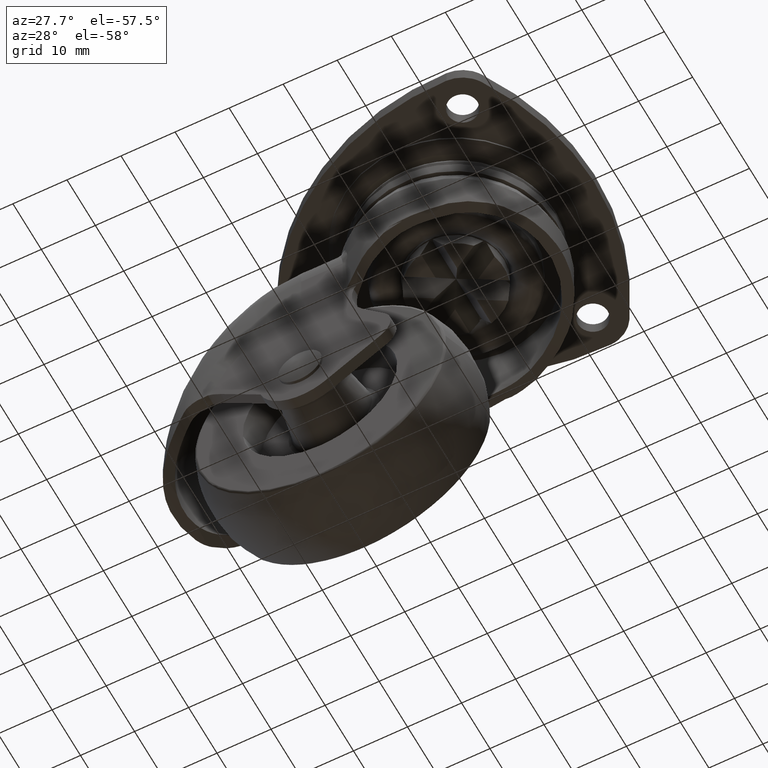
[diagram: clean part render]
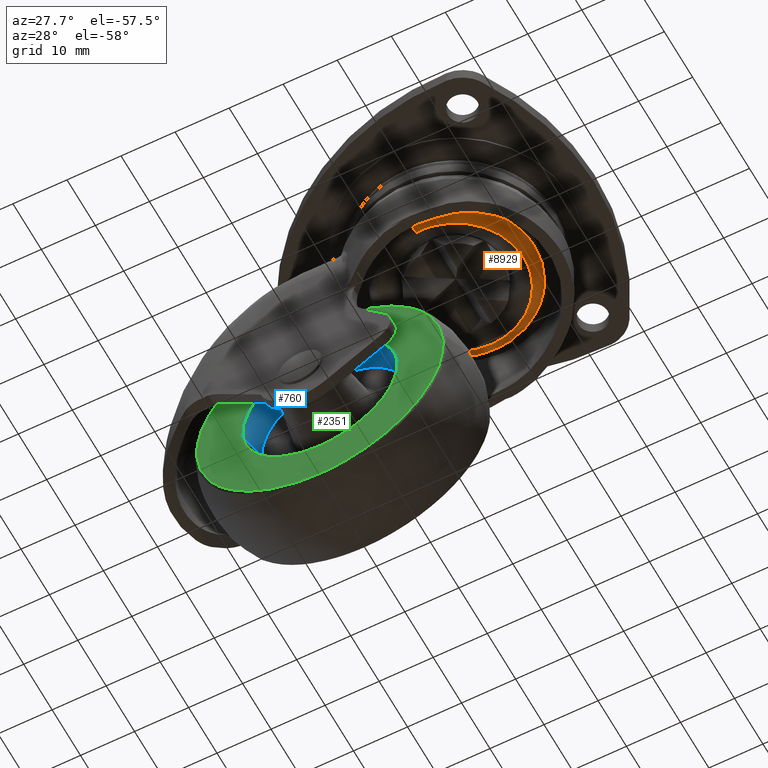
[diagram: same view with three faces highlighted in distinct colors, each labeled with its STEP entity id]
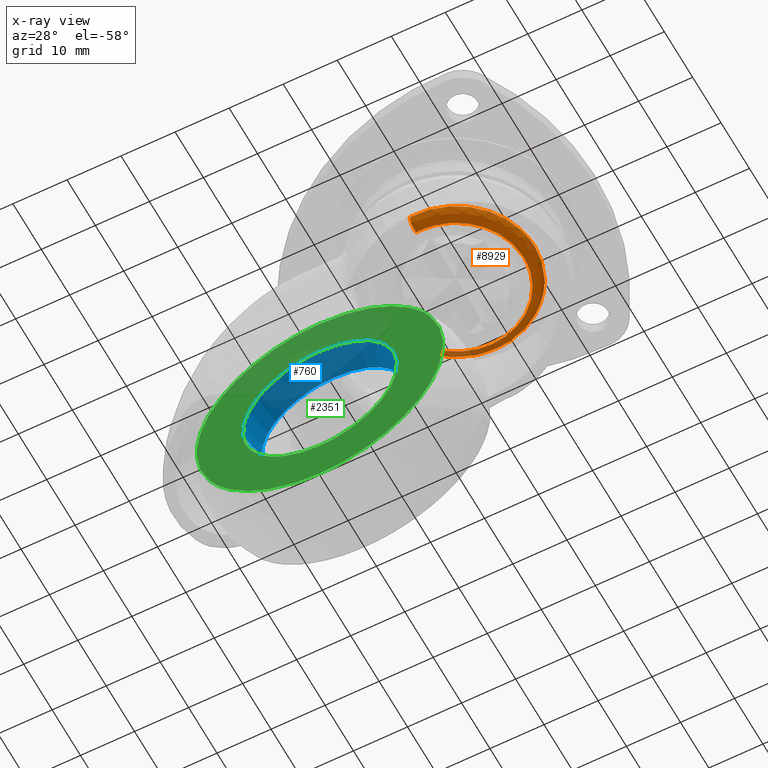
[diagram: x-ray of the same camera — body ghosted, the three highlighted faces saturated]
A machine part, auxiliary view with three faces highlighted in distinct colors.
The next image is the same camera in x-ray (body ghosted, the three faces saturated) — at least one of them is partly hidden behind the body in this view.
Their STEP definitions:

[orange] entity #8929 — the highlighted face is a freeform B-spline surface patch.
#6755=CARTESIAN_POINT('',(14.500000000000000,0.0,-13.260379159228281));
#6756=VERTEX_POINT('',#6755);
#6757=CARTESIAN_POINT('',(10.037689698602760,10.463975607509949,-13.260379159228350));
#6758=VERTEX_POINT('',#6757);
#6759=CARTESIAN_POINT('',(14.500000000000000,0.0,-13.260379159228281));
#6760=CARTESIAN_POINT('',(14.500000000000002,6.183453324695830,-13.260379159228281));
#6761=CARTESIAN_POINT('',(10.037689698602762,10.463975607509948,-13.260379159228345));
#6769=(BOUNDED_CURVE()B_SPLINE_CURVE(2,(#6759,#6760,#6761),.UNSPECIFIED.,.F.,.U.)B_SPLINE_CURVE_WITH_KNOTS((3,3),(0.0,0.128137053052211),.UNSPECIFIED.)CURVE()GEOMETRIC_REPRESENTATION_ITEM()RATIONAL_B_SPLINE_CURVE((1.0,0.849878104329071,0.853645627137217))REPRESENTATION_ITEM(''));
#6770=EDGE_CURVE('',#6756,#6758,#6769,.T.);
#6828=CARTESIAN_POINT('',(1.137656888111247,14.455301339125830,-13.260379159228281));
#6829=VERTEX_POINT('',#6828);
#6835=CARTESIAN_POINT('',(-14.498855140954429,0.182207578380342,-13.260379159405440));
#6836=VERTEX_POINT('',#6835);
#6837=CARTESIAN_POINT('',(1.137656888111248,14.455301339125830,-13.260379159228284));
#6838=CARTESIAN_POINT('',(0.569706551668972,14.499999999999998,-13.260379159228279));
#6839=CARTESIAN_POINT('',(0.0,14.500000000000000,-13.260379159228281));
#6840=CARTESIAN_POINT('',(-14.318922983514346,14.500000000000002,-13.260379159228281));
#6841=CARTESIAN_POINT('',(-14.498855140954426,0.182207578380342,-13.260379159405440));
#6849=(BOUNDED_CURVE()B_SPLINE_CURVE(2,(#6837,#6838,#6839,#6840,#6841),.UNSPECIFIED.,.F.,.U.)B_SPLINE_CURVE_WITH_KNOTS((3,2,3),(0.236331300631403,0.250000000000000,0.497784295919988),.UNSPECIFIED.)CURVE()GEOMETRIC_REPRESENTATION_ITEM()RATIONAL_B_SPLINE_CURVE((0.969723356168970,0.983986122579753,1.0,0.709702639986279,0.994854295640006))REPRESENTATION_ITEM(''));
#6850=EDGE_CURVE('',#6829,#6836,#6849,.T.);
#6867=CARTESIAN_POINT('',(-1.011132147906928,-14.464702270681871,-13.260379159404600));
#6868=VERTEX_POINT('',#6867);
#6882=CARTESIAN_POINT('',(-1.011132147906928,-14.464702270681871,-13.260379159404602));
#6883=CARTESIAN_POINT('',(-0.506182180246572,-14.499999999999998,-13.260379159228279));
#6884=CARTESIAN_POINT('',(0.0,-14.500000000000000,-13.260379159228281));
#6885=CARTESIAN_POINT('',(14.500000000000000,-14.500000000000000,-13.260379159228281));
#6886=CARTESIAN_POINT('',(14.500000000000000,0.0,-13.260379159228281));
#6894=(BOUNDED_CURVE()B_SPLINE_CURVE(2,(#6882,#6883,#6884,#6885,#6886),.UNSPECIFIED.,.F.,.U.)B_SPLINE_CURVE_WITH_KNOTS((3,2,3),(0.737833686533636,0.750000000000000,1.0),.UNSPECIFIED.)CURVE()GEOMETRIC_REPRESENTATION_ITEM()RATIONAL_B_SPLINE_CURVE((0.972879876383897,0.985746277150973,1.0,0.707106781186548,1.0))REPRESENTATION_ITEM(''));
#6895=EDGE_CURVE('',#6868,#6756,#6894,.T.);
#6914=CARTESIAN_POINT('',(10.037689698602763,10.463975607509948,-13.260379159228343));
#6915=CARTESIAN_POINT('',(6.300432849565782,14.048982058964924,-13.260379159228277));
#6916=CARTESIAN_POINT('',(1.137656888111248,14.455301339125830,-13.260379159228284));
#6924=(BOUNDED_CURVE()B_SPLINE_CURVE(2,(#6914,#6915,#6916),.UNSPECIFIED.,.F.,.U.)B_SPLINE_CURVE_WITH_KNOTS((3,3),(0.128137053052211,0.236331300631403),.UNSPECIFIED.)CURVE()GEOMETRIC_REPRESENTATION_ITEM()RATIONAL_B_SPLINE_CURVE((0.853645627137217,0.856826785793165,0.969723356168970))REPRESENTATION_ITEM(''));
#6925=EDGE_CURVE('',#6758,#6829,#6924,.T.);
#8826=CARTESIAN_POINT('',(-0.861966850926120,-12.330835078500918,-15.255537874431052));
#8827=CARTESIAN_POINT('',(-0.509063989208924,-12.355504175643215,-15.255537874431049));
#8828=CARTESIAN_POINT('',(-0.155327883523865,-12.359949588646561,-15.255537874431045));
#8829=CARTESIAN_POINT('',(12.204621705122690,-12.515277472170421,-15.255537874431051));
#8830=CARTESIAN_POINT('',(12.359949588646561,-0.155327883523866,-15.255537874431045));
#8831=CARTESIAN_POINT('',(12.515277472170425,12.204621705122690,-15.255537874431051));
#8832=CARTESIAN_POINT('',(0.155327883523867,12.359949588646561,-15.255537874431045));
#8833=CARTESIAN_POINT('',(-12.204621705122687,12.515277472170425,-15.255537874431051));
#8834=CARTESIAN_POINT('',(-12.359949588646561,0.155327883523868,-15.255537874431045));
#8835=CARTESIAN_POINT('',(-1.021945208072127,-14.619399581854438,-15.415453736631761));
#8836=CARTESIAN_POINT('',(-0.603544676706751,-14.648647186428729,-15.415453736631756));
#8837=CARTESIAN_POINT('',(-0.184156253893811,-14.653917654210394,-15.415453736631761));
#8838=CARTESIAN_POINT('',(14.469761400316578,-14.838073908104207,-15.415453736631761));
#8839=CARTESIAN_POINT('',(14.653917654210394,-0.184156253893812,-15.415453736631761));
#8840=CARTESIAN_POINT('',(14.838073908104208,14.469761400316578,-15.415453736631761));
#8841=CARTESIAN_POINT('',(0.184156253893813,14.653917654210394,-15.415453736631761));
#8842=CARTESIAN_POINT('',(-14.469761400316578,14.838073908104208,-15.415453736631761));
#8843=CARTESIAN_POINT('',(-14.653917654210394,0.184156253893814,-15.415453736631761));
#8844=CARTESIAN_POINT('',(-1.010793750471796,-14.459872815358922,-13.121304548040678));
#8845=CARTESIAN_POINT('',(-0.596958802220489,-14.488801270315651,-13.121304548040669));
#8846=CARTESIAN_POINT('',(-0.182146742384866,-14.494014226796766,-13.121304548040673));
#8847=CARTESIAN_POINT('',(14.311867484411906,-14.676160969181637,-13.121304548040671));
#8848=CARTESIAN_POINT('',(14.494014226796766,-0.182146742384867,-13.121304548040673));
#8849=CARTESIAN_POINT('',(14.676160969181637,14.311867484411906,-13.121304548040671));
#8850=CARTESIAN_POINT('',(0.182146742384868,14.494014226796766,-13.121304548040673));
#8851=CARTESIAN_POINT('',(-14.311867484411904,14.676160969181641,-13.121304548040671));
#8852=CARTESIAN_POINT('',(-14.494014226796766,0.182146742384869,-13.121304548040673));
#8860=(BOUNDED_SURFACE()B_SPLINE_SURFACE(2,2,((#8826,#8835,#8844),(#8827,#8836,#8845),(#8828,#8837,#8846),(#8829,#8838,#8847),(#8830,#8839,#8848),(#8831,#8840,#8849),(#8832,#8841,#8850),(#8833,#8842,#8851),(#8834,#8843,#8852)),.UNSPECIFIED.,.F.,.F.,.U.)B_SPLINE_SURFACE_WITH_KNOTS((3,2,2,2,3),(3,3),(0.0,0.960653695652952,24.977018990767512,48.993384285882073,73.009749580996640),(0.0,3.644748572973803),.UNSPECIFIED.)GEOMETRIC_REPRESENTATION_ITEM()RATIONAL_B_SPLINE_SURFACE(((0.895729783543511,0.587800159032262,0.895729817610168),(0.905606541704531,0.594281533353437,0.905606576146824),(0.916342147511007,0.601326504857443,0.916342182361599),(0.647951746392076,0.425202049291904,0.647951771035167),(0.916342147511007,0.601326504857443,0.916342182361599),(0.647951746392076,0.425202049291904,0.647951771035167),(0.916342147511007,0.601326504857443,0.916342182361599),(0.647951746392076,0.425202049291904,0.647951771035167),(0.916342147511007,0.601326504857443,0.916342182361599)))REPRESENTATION_ITEM('')SURFACE());
#8861=CARTESIAN_POINT('',(12.500000000000000,0.0,-15.260379159228300));
#8862=VERTEX_POINT('',#8861);
#8863=CARTESIAN_POINT('',(-0.871665645881486,-12.469570931178540,-15.260379159228290));
#8864=VERTEX_POINT('',#8863);
#8865=CARTESIAN_POINT('',(12.500000000000000,0.0,-15.260379159228300));
#8866=CARTESIAN_POINT('',(12.499999999999998,-12.499999999999998,-15.260379159228293));
#8867=CARTESIAN_POINT('',(0.0,-12.500000000000000,-15.260379159228300));
#8868=CARTESIAN_POINT('',(-0.436363949050278,-12.500000000000004,-15.260379159228302));
#8869=CARTESIAN_POINT('',(-0.871665645881486,-12.469570931178534,-15.260379159228291));
#8877=(BOUNDED_CURVE()B_SPLINE_CURVE(2,(#8865,#8866,#8867,#8868,#8869),.UNSPECIFIED.,.F.,.U.)B_SPLINE_CURVE_WITH_KNOTS((3,2,3),(0.0,0.250000000000000,0.262166313481806),.UNSPECIFIED.)CURVE()GEOMETRIC_REPRESENTATION_ITEM()RATIONAL_B_SPLINE_CURVE((1.0,0.707106781186547,1.0,0.985746277132881,0.972879876351236))REPRESENTATION_ITEM(''));
#8878=EDGE_CURVE('',#8862,#8864,#8877,.T.);
#8879=ORIENTED_EDGE('',*,*,#8878,.F.);
#8880=CARTESIAN_POINT('',(-12.499013055860109,0.157075498774634,-15.260379159228290));
#8881=VERTEX_POINT('',#8880);
#8882=CARTESIAN_POINT('',(-12.499013055860109,0.157075498774634,-15.260379159228293));
#8883=CARTESIAN_POINT('',(-12.343899123463993,12.499999999999998,-15.260379159228293));
#8884=CARTESIAN_POINT('',(0.0,12.500000000000000,-15.260379159228300));
#8885=CARTESIAN_POINT('',(12.499999999999998,12.499999999999998,-15.260379159228293));
#8886=CARTESIAN_POINT('',(12.500000000000000,0.0,-15.260379159228300));
#8894=(BOUNDED_CURVE()B_SPLINE_CURVE(2,(#8882,#8883,#8884,#8885,#8886),.UNSPECIFIED.,.F.,.U.)B_SPLINE_CURVE_WITH_KNOTS((3,2,3),(0.502215704083649,0.750000000000000,1.0),.UNSPECIFIED.)CURVE()GEOMETRIC_REPRESENTATION_ITEM()RATIONAL_B_SPLINE_CURVE((0.994854295631637,0.709702639990540,1.0,0.707106781186547,1.0))REPRESENTATION_ITEM(''));
#8895=EDGE_CURVE('',#8881,#8862,#8894,.T.);
#8896=ORIENTED_EDGE('',*,*,#8895,.F.);
#8897=CARTESIAN_POINT('',(-12.499013055860114,0.157075498774634,-15.260379159228291));
#8898=CARTESIAN_POINT('',(-14.498855140601027,0.182207578304150,-15.260379152598128));
#8899=CARTESIAN_POINT('',(-14.498855140954426,0.182207578380342,-13.260379159405439));
#8907=(BOUNDED_CURVE()B_SPLINE_CURVE(2,(#8897,#8898,#8899),.UNSPECIFIED.,.F.,.U.)B_SPLINE_CURVE_WITH_KNOTS((3,3),(-1.734750788213725,-0.265249208525689),.UNSPECIFIED.)CURVE()GEOMETRIC_REPRESENTATION_ITEM()RATIONAL_B_SPLINE_CURVE((0.889029722355671,0.628638946860309,0.889029723511201))REPRESENTATION_ITEM(''));
#8908=EDGE_CURVE('',#8881,#6836,#8907,.T.);
#8909=ORIENTED_EDGE('',*,*,#8908,.T.);
#8910=ORIENTED_EDGE('',*,*,#6850,.F.);
#8911=ORIENTED_EDGE('',*,*,#6925,.F.);
#8912=ORIENTED_EDGE('',*,*,#6770,.F.);
#8913=ORIENTED_EDGE('',*,*,#6895,.F.);
#8914=CARTESIAN_POINT('',(-0.871665645881486,-12.469570931178541,-15.260379159228293));
#8915=CARTESIAN_POINT('',(-1.011132147819309,-14.464702270334477,-15.260379142756058));
#8916=CARTESIAN_POINT('',(-1.011132147906928,-14.464702270681862,-13.260379159404611));
#8924=(BOUNDED_CURVE()B_SPLINE_CURVE(2,(#8914,#8915,#8916),.UNSPECIFIED.,.F.,.U.)B_SPLINE_CURVE_WITH_KNOTS((3,3),(-1.734750783100303,-0.265249208524815),.UNSPECIFIED.)CURVE()GEOMETRIC_REPRESENTATION_ITEM()RATIONAL_B_SPLINE_CURVE((0.869031708910550,0.614498218047240,0.869031711811790))REPRESENTATION_ITEM(''));
#8925=EDGE_CURVE('',#8864,#6868,#8924,.T.);
#8926=ORIENTED_EDGE('',*,*,#8925,.F.);
#8927=EDGE_LOOP('',(#8879,#8896,#8909,#8910,#8911,#8912,#8913,#8926));
#8928=FACE_OUTER_BOUND('',#8927,.T.);
#8929=ADVANCED_FACE('',(#8928),#8860,.T.);

[blue] entity #760 — the highlighted face is a freeform B-spline surface patch.
#662=CARTESIAN_POINT('',(13.264939225053491,-2.875000000000000,-43.956026642063449));
#663=CARTESIAN_POINT('',(12.220965867116943,-2.875000000000000,-30.691087417009953));
#664=CARTESIAN_POINT('',(-1.043973357936550,-2.875000000000000,-31.735060774946511));
#665=CARTESIAN_POINT('',(-14.308912582990047,-2.875000000000000,-32.779034132883055));
#666=CARTESIAN_POINT('',(-13.264939225053491,-2.875000000000000,-46.043973357936551));
#667=CARTESIAN_POINT('',(14.280692338566981,-8.128125000000001,-43.876085138317521));
#668=CARTESIAN_POINT('',(13.156777476884500,-8.128125000000001,-29.595392799750538));
#669=CARTESIAN_POINT('',(-1.123914861682482,-8.128125000000001,-30.719307661433021));
#670=CARTESIAN_POINT('',(-15.404607200249460,-8.128125000000001,-31.843222523115493));
#671=CARTESIAN_POINT('',(-14.280692338566981,-8.128125000000001,-46.123914861682479));
#679=(BOUNDED_SURFACE()B_SPLINE_SURFACE(2,1,((#662,#667),(#663,#668),(#664,#669),(#665,#670),(#666,#671)),.UNSPECIFIED.,.F.,.F.,.U.)B_SPLINE_SURFACE_WITH_KNOTS((3,2,3),(2,2),(0.0,23.734190374888168,47.468380749776337),(0.0,5.351024882885383),.UNSPECIFIED.)GEOMETRIC_REPRESENTATION_ITEM()RATIONAL_B_SPLINE_SURFACE(((1.0,1.0),(0.707106781186548,0.707106781186548),(1.0,1.0),(0.707106781186548,0.707106781186548),(1.0,1.0)))REPRESENTATION_ITEM('')SURFACE());
#680=CARTESIAN_POINT('',(0.0,-8.0,-30.699999999999999));
#681=VERTEX_POINT('',#680);
#682=CARTESIAN_POINT('',(14.255917872380010,-8.000000000010516,-43.878034931018561));
#683=VERTEX_POINT('',#682);
#684=CARTESIAN_POINT('',(0.0,-8.0,-30.699999999999999));
#685=CARTESIAN_POINT('',(13.218784030576403,-8.0,-30.699999999999996));
#686=CARTESIAN_POINT('',(14.255917872380014,-8.000000000010516,-43.878034931018561));
#694=(BOUNDED_CURVE()B_SPLINE_CURVE(2,(#684,#685,#686),.UNSPECIFIED.,.F.,.U.)B_SPLINE_CURVE_WITH_KNOTS((3,3),(0.0,0.236331300631009),.UNSPECIFIED.)CURVE()GEOMETRIC_REPRESENTATION_ITEM()RATIONAL_B_SPLINE_CURVE((1.0,0.723120658607256,0.969723356168147))REPRESENTATION_ITEM(''));
#695=EDGE_CURVE('',#681,#683,#694,.T.);
#696=ORIENTED_EDGE('',*,*,#695,.F.);
#697=CARTESIAN_POINT('',(-14.255917872380010,-8.000000000010516,-46.121965068981432));
#698=VERTEX_POINT('',#697);
#699=CARTESIAN_POINT('',(-14.255917872380014,-8.000000000010516,-46.121965068981432));
#700=CARTESIAN_POINT('',(-14.300000000000002,-8.0,-45.561848530283108));
#701=CARTESIAN_POINT('',(-14.300000000000001,-8.0,-45.0));
#702=CARTESIAN_POINT('',(-14.299999999999999,-8.0,-30.699999999999999));
#703=CARTESIAN_POINT('',(0.0,-8.0,-30.699999999999999));
#711=(BOUNDED_CURVE()B_SPLINE_CURVE(2,(#699,#700,#701,#702,#703),.UNSPECIFIED.,.F.,.U.)B_SPLINE_CURVE_WITH_KNOTS((3,2,3),(0.736331300631009,0.750000000000000,1.0),.UNSPECIFIED.)CURVE()GEOMETRIC_REPRESENTATION_ITEM()RATIONAL_B_SPLINE_CURVE((0.969723356168147,0.983986122579291,1.0,0.707106781186548,1.0))REPRESENTATION_ITEM(''));
#712=EDGE_CURVE('',#698,#681,#711,.T.);
#713=ORIENTED_EDGE('',*,*,#712,.F.);
#714=CARTESIAN_POINT('',(-13.289109435962480,-3.000000000004256,-46.045875594819172));
#715=VERTEX_POINT('',#714);
#716=CARTESIAN_POINT('',(-13.289109435962480,-3.000000000004256,-46.045875594819172));
#717=CARTESIAN_POINT('',(-14.255917872380010,-8.000000000010516,-46.121965068981432));
#718=QUASI_UNIFORM_CURVE('',1,(#716,#717),.UNSPECIFIED.,.F.,.U.);
#719=EDGE_CURVE('',#715,#698,#718,.T.);
#720=ORIENTED_EDGE('',*,*,#719,.F.);
#721=CARTESIAN_POINT('',(0.0,-3.0,-31.669798000000021));
#722=VERTEX_POINT('',#721);
#723=CARTESIAN_POINT('',(-13.289109435962484,-3.000000000004256,-46.045875594819165));
#724=CARTESIAN_POINT('',(-13.330201999999975,-3.0,-45.523745063043584));
#725=CARTESIAN_POINT('',(-13.330201999999980,-3.0,-45.0));
#726=CARTESIAN_POINT('',(-13.330201999999982,-3.000000000000000,-31.669798000000014));
#727=CARTESIAN_POINT('',(0.0,-3.0,-31.669798000000021));
#735=(BOUNDED_CURVE()B_SPLINE_CURVE(2,(#723,#724,#725,#726,#727),.UNSPECIFIED.,.F.,.U.)B_SPLINE_CURVE_WITH_KNOTS((3,2,3),(0.736331300632003,0.750000000000000,1.0),.UNSPECIFIED.)CURVE()GEOMETRIC_REPRESENTATION_ITEM()RATIONAL_B_SPLINE_CURVE((0.969723356170222,0.983986122580456,1.0,0.707106781186547,1.0))REPRESENTATION_ITEM(''));
#736=EDGE_CURVE('',#715,#722,#735,.T.);
#737=ORIENTED_EDGE('',*,*,#736,.T.);
#738=CARTESIAN_POINT('',(13.289109435962480,-3.000000000004256,-43.954124405180842));
#739=VERTEX_POINT('',#738);
#740=CARTESIAN_POINT('',(0.0,-3.0,-31.669798000000021));
#741=CARTESIAN_POINT('',(12.322311980628147,-3.000000000000000,-31.669798000000011));
#742=CARTESIAN_POINT('',(13.289109435962486,-3.000000000004256,-43.954124405180835));
#750=(BOUNDED_CURVE()B_SPLINE_CURVE(2,(#740,#741,#742),.UNSPECIFIED.,.F.,.U.)B_SPLINE_CURVE_WITH_KNOTS((3,3),(0.0,0.236331300632003),.UNSPECIFIED.)CURVE()GEOMETRIC_REPRESENTATION_ITEM()RATIONAL_B_SPLINE_CURVE((1.0,0.723120658606091,0.969723356170222))REPRESENTATION_ITEM(''));
#751=EDGE_CURVE('',#722,#739,#750,.T.);
#752=ORIENTED_EDGE('',*,*,#751,.T.);
#753=CARTESIAN_POINT('',(13.289109435962480,-3.000000000004256,-43.954124405180842));
#754=CARTESIAN_POINT('',(14.255917872380010,-8.000000000010516,-43.878034931018561));
#755=QUASI_UNIFORM_CURVE('',1,(#753,#754),.UNSPECIFIED.,.F.,.U.);
#756=EDGE_CURVE('',#739,#683,#755,.T.);
#757=ORIENTED_EDGE('',*,*,#756,.T.);
#758=EDGE_LOOP('',(#696,#713,#720,#737,#752,#757));
#759=FACE_OUTER_BOUND('',#758,.T.);
#760=ADVANCED_FACE('',(#759),#679,.F.);

[green] entity #2351 — the highlighted face is a freeform B-spline surface patch.
#680=CARTESIAN_POINT('',(0.0,-8.0,-30.699999999999999));
#681=VERTEX_POINT('',#680);
#682=CARTESIAN_POINT('',(14.255917872380010,-8.000000000010516,-43.878034931018561));
#683=VERTEX_POINT('',#682);
#684=CARTESIAN_POINT('',(0.0,-8.0,-30.699999999999999));
#685=CARTESIAN_POINT('',(13.218784030576403,-8.0,-30.699999999999996));
#686=CARTESIAN_POINT('',(14.255917872380014,-8.000000000010516,-43.878034931018561));
#694=(BOUNDED_CURVE()B_SPLINE_CURVE(2,(#684,#685,#686),.UNSPECIFIED.,.F.,.U.)B_SPLINE_CURVE_WITH_KNOTS((3,3),(0.0,0.236331300631009),.UNSPECIFIED.)CURVE()GEOMETRIC_REPRESENTATION_ITEM()RATIONAL_B_SPLINE_CURVE((1.0,0.723120658607256,0.969723356168147))REPRESENTATION_ITEM(''));
#695=EDGE_CURVE('',#681,#683,#694,.T.);
#697=CARTESIAN_POINT('',(-14.255917872380010,-8.000000000010516,-46.121965068981432));
#698=VERTEX_POINT('',#697);
#699=CARTESIAN_POINT('',(-14.255917872380014,-8.000000000010516,-46.121965068981432));
#700=CARTESIAN_POINT('',(-14.300000000000002,-8.0,-45.561848530283108));
#701=CARTESIAN_POINT('',(-14.300000000000001,-8.0,-45.0));
#702=CARTESIAN_POINT('',(-14.299999999999999,-8.0,-30.699999999999999));
#703=CARTESIAN_POINT('',(0.0,-8.0,-30.699999999999999));
#711=(BOUNDED_CURVE()B_SPLINE_CURVE(2,(#699,#700,#701,#702,#703),.UNSPECIFIED.,.F.,.U.)B_SPLINE_CURVE_WITH_KNOTS((3,2,3),(0.736331300631009,0.750000000000000,1.0),.UNSPECIFIED.)CURVE()GEOMETRIC_REPRESENTATION_ITEM()RATIONAL_B_SPLINE_CURVE((0.969723356168147,0.983986122579291,1.0,0.707106781186548,1.0))REPRESENTATION_ITEM(''));
#712=EDGE_CURVE('',#698,#681,#711,.T.);
#779=CARTESIAN_POINT('',(0.0,-8.0,-59.299999999999997));
#780=VERTEX_POINT('',#779);
#781=CARTESIAN_POINT('',(14.255917872380014,-8.000000000010516,-43.878034931018561));
#782=CARTESIAN_POINT('',(14.300000000000002,-8.0,-44.438151469716892));
#783=CARTESIAN_POINT('',(14.300000000000001,-8.0,-45.0));
#784=CARTESIAN_POINT('',(14.299999999999999,-8.0,-59.299999999999997));
#785=CARTESIAN_POINT('',(0.0,-8.0,-59.299999999999997));
#793=(BOUNDED_CURVE()B_SPLINE_CURVE(2,(#781,#782,#783,#784,#785),.UNSPECIFIED.,.F.,.U.)B_SPLINE_CURVE_WITH_KNOTS((3,2,3),(0.236331300631009,0.250000000000000,0.500000000000000),.UNSPECIFIED.)CURVE()GEOMETRIC_REPRESENTATION_ITEM()RATIONAL_B_SPLINE_CURVE((0.969723356168147,0.983986122579291,1.0,0.707106781186548,1.0))REPRESENTATION_ITEM(''));
#794=EDGE_CURVE('',#683,#780,#793,.T.);
#828=CARTESIAN_POINT('',(0.0,-8.0,-59.299999999999997));
#829=CARTESIAN_POINT('',(-13.218784030576444,-8.0,-59.299999999999990));
#830=CARTESIAN_POINT('',(-14.255917872380008,-8.000000000010518,-46.121965068981432));
#838=(BOUNDED_CURVE()B_SPLINE_CURVE(2,(#828,#829,#830),.UNSPECIFIED.,.F.,.U.)B_SPLINE_CURVE_WITH_KNOTS((3,3),(0.500000000000000,0.736331300631010),.UNSPECIFIED.)CURVE()GEOMETRIC_REPRESENTATION_ITEM()RATIONAL_B_SPLINE_CURVE((1.0,0.723120658607256,0.969723356168148))REPRESENTATION_ITEM(''));
#839=EDGE_CURVE('',#780,#698,#838,.T.);
#1829=CARTESIAN_POINT('',(-20.389763558698348,-7.999999999999998,-55.228243526113417));
#1830=VERTEX_POINT('',#1829);
#1844=CARTESIAN_POINT('',(0.0,-8.0,-22.188611999999999));
#1845=VERTEX_POINT('',#1844);
#1846=CARTESIAN_POINT('',(-20.389763558698348,-7.999999999999998,-55.228243526113410));
#1847=CARTESIAN_POINT('',(-22.811387999999997,-8.0,-50.400791948495225));
#1848=CARTESIAN_POINT('',(-22.811388000000001,-8.0,-45.0));
#1849=CARTESIAN_POINT('',(-22.811388000000004,-8.0,-22.188611999999996));
#1850=CARTESIAN_POINT('',(0.0,-8.0,-22.188611999999999));
#1858=(BOUNDED_CURVE()B_SPLINE_CURVE(2,(#1846,#1847,#1848,#1849,#1850),.UNSPECIFIED.,.F.,.U.)B_SPLINE_CURVE_WITH_KNOTS((3,2,3),(0.673769062113253,0.750000000000000,1.0),.UNSPECIFIED.)CURVE()GEOMETRIC_REPRESENTATION_ITEM()RATIONAL_B_SPLINE_CURVE((0.875845342760467,0.910689900916730,1.0,0.707106781186548,1.0))REPRESENTATION_ITEM(''));
#1859=EDGE_CURVE('',#1830,#1845,#1858,.T.);
#1861=CARTESIAN_POINT('',(20.389763558698348,-7.999999999999999,-34.771756473886583));
#1862=VERTEX_POINT('',#1861);
#1863=CARTESIAN_POINT('',(0.0,-8.0,-22.188611999999999));
#1864=CARTESIAN_POINT('',(14.077602743467777,-8.0,-22.188612000000003));
#1865=CARTESIAN_POINT('',(20.389763558698348,-7.999999999999999,-34.771756473886590));
#1873=(BOUNDED_CURVE()B_SPLINE_CURVE(2,(#1863,#1864,#1865),.UNSPECIFIED.,.F.,.U.)B_SPLINE_CURVE_WITH_KNOTS((3,3),(0.0,0.173769062113253),.UNSPECIFIED.)CURVE()GEOMETRIC_REPRESENTATION_ITEM()RATIONAL_B_SPLINE_CURVE((1.0,0.796416880269818,0.875845342760467))REPRESENTATION_ITEM(''));
#1874=EDGE_CURVE('',#1845,#1862,#1873,.T.);
#1976=CARTESIAN_POINT('',(0.0,-8.0,-67.811387999999994));
#1977=VERTEX_POINT('',#1976);
#1978=CARTESIAN_POINT('',(20.389763558698348,-7.999999999999999,-34.771756473886590));
#1979=CARTESIAN_POINT('',(22.811387999999997,-8.0,-39.599208051504775));
#1980=CARTESIAN_POINT('',(22.811388000000001,-8.0,-45.0));
#1981=CARTESIAN_POINT('',(22.811388000000004,-8.0,-67.811387999999994));
#1982=CARTESIAN_POINT('',(0.0,-8.0,-67.811387999999994));
#1990=(BOUNDED_CURVE()B_SPLINE_CURVE(2,(#1978,#1979,#1980,#1981,#1982),.UNSPECIFIED.,.F.,.U.)B_SPLINE_CURVE_WITH_KNOTS((3,2,3),(0.173769062113253,0.250000000000000,0.500000000000000),.UNSPECIFIED.)CURVE()GEOMETRIC_REPRESENTATION_ITEM()RATIONAL_B_SPLINE_CURVE((0.875845342760467,0.910689900916730,1.0,0.707106781186548,1.0))REPRESENTATION_ITEM(''));
#1991=EDGE_CURVE('',#1862,#1977,#1990,.T.);
#1993=CARTESIAN_POINT('',(0.0,-8.0,-67.811387999999994));
#1994=CARTESIAN_POINT('',(-14.077602743467827,-8.0,-67.811387999999994));
#1995=CARTESIAN_POINT('',(-20.389763558698348,-7.999999999999998,-55.228243526113424));
#2003=(BOUNDED_CURVE()B_SPLINE_CURVE(2,(#1993,#1994,#1995),.UNSPECIFIED.,.F.,.U.)B_SPLINE_CURVE_WITH_KNOTS((3,3),(0.500000000000000,0.673769062113254),.UNSPECIFIED.)CURVE()GEOMETRIC_REPRESENTATION_ITEM()RATIONAL_B_SPLINE_CURVE((1.0,0.796416880269818,0.875845342760467))REPRESENTATION_ITEM(''));
#2004=EDGE_CURVE('',#1977,#1830,#2003,.T.);
#2334=CARTESIAN_POINT('',(-25.088978545546521,-8.0,-19.909754590222398));
#2335=CARTESIAN_POINT('',(-25.088978545546521,-8.0,-70.090243370280589));
#2336=CARTESIAN_POINT('',(25.088977730536541,-8.0,-19.909754590222398));
#2337=CARTESIAN_POINT('',(25.088977730536541,-8.0,-70.090243370280589));
#2338=B_SPLINE_SURFACE_WITH_KNOTS('',1,1,((#2334,#2336),(#2335,#2337)),.UNSPECIFIED.,.F.,.F.,.U.,(2,2),(2,2),(0.0,50.180488780058198),(0.0,50.177956276083059),.UNSPECIFIED.);
#2339=ORIENTED_EDGE('',*,*,#1859,.F.);
#2340=ORIENTED_EDGE('',*,*,#2004,.F.);
#2341=ORIENTED_EDGE('',*,*,#1991,.F.);
#2342=ORIENTED_EDGE('',*,*,#1874,.F.);
#2343=EDGE_LOOP('',(#2339,#2340,#2341,#2342));
#2344=FACE_OUTER_BOUND('',#2343,.T.);
#2345=ORIENTED_EDGE('',*,*,#839,.T.);
#2346=ORIENTED_EDGE('',*,*,#712,.T.);
#2347=ORIENTED_EDGE('',*,*,#695,.T.);
#2348=ORIENTED_EDGE('',*,*,#794,.T.);
#2349=EDGE_LOOP('',(#2345,#2346,#2347,#2348));
#2350=FACE_BOUND('',#2349,.T.);
#2351=ADVANCED_FACE('',(#2344,#2350),#2338,.T.);